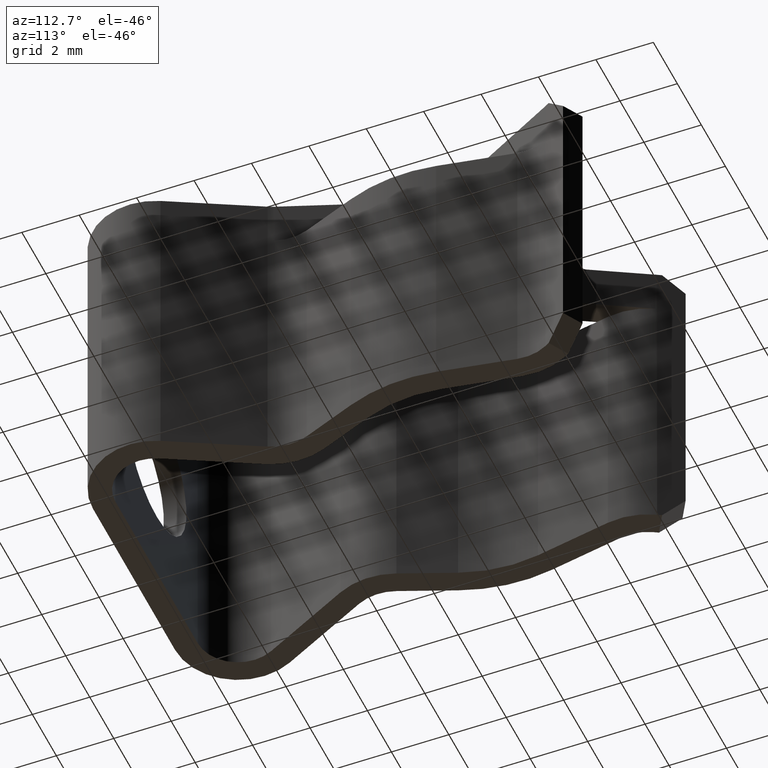
[diagram: clean part render]
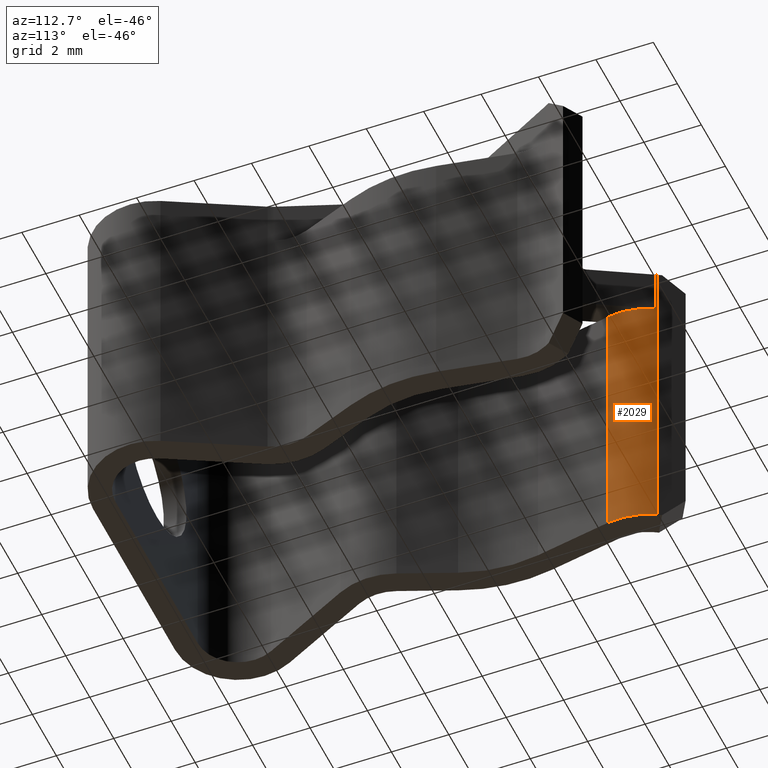
[diagram: same view with one face highlighted and labeled with its STEP entity id]
A machine part, auxiliary view. The second image highlights one B-rep face of the part: STEP entity #2029.
In plain terms, the highlighted cylindrical surface (partial cylindrical patch) has radius 2.3622 mm, axis along (0, 0, 1).
Its self-contained STEP definition (entity closure, byte-faithful):
#17 = VERTEX_POINT ( 'NONE', #1382 ) ;
#161 = VECTOR ( 'NONE', #938, 39.37007874015748100 ) ;
#197 = CARTESIAN_POINT ( 'NONE',  ( -0.2313538290724795600, 0.5769999999999999600, 0.06200000000000000000 ) ) ;
#212 = ORIENTED_EDGE ( 'NONE', *, *, #880, .T. ) ;
#310 = CIRCLE ( 'NONE', #598, 0.09300000000000004100 ) ;
#328 = VERTEX_POINT ( 'NONE', #1121 ) ;
#330 = VERTEX_POINT ( 'NONE', #1352 ) ;
#353 = EDGE_CURVE ( 'NONE', #1538, #17, #1640, .T. ) ;
#393 = EDGE_CURVE ( 'NONE', #328, #2432, #1004, .T. ) ;
#481 = CARTESIAN_POINT ( 'NONE',  ( -0.1398257617755192800, 0.5605193174630693800, -0.3750000000000000600 ) ) ;
#589 = VECTOR ( 'NONE', #698, 39.37007874015748100 ) ;
#598 = AXIS2_PLACEMENT_3D ( 'NONE', #867, #2208, #1061 ) ;
#647 = VERTEX_POINT ( 'NONE', #1015 ) ;
#698 = DIRECTION ( 'NONE',  ( -0.0000000000000000000, -0.0000000000000000000, -1.000000000000000000 ) ) ;
#799 = CYLINDRICAL_SURFACE ( 'NONE', #895, 0.09300000000000004100 ) ;
#838 = EDGE_CURVE ( 'NONE', #330, #2432, #1499, .T. ) ;
#856 = FACE_OUTER_BOUND ( 'NONE', #1704, .T. ) ;
#867 = CARTESIAN_POINT ( 'NONE',  ( -0.2313538290724797300, 0.5770000000000001800, -0.3750000000000000600 ) ) ;
#880 = EDGE_CURVE ( 'NONE', #647, #17, #1436, .T. ) ;
#895 = AXIS2_PLACEMENT_3D ( 'NONE', #2309, #2132, #985 ) ;
#938 = DIRECTION ( 'NONE',  ( 0.0000000000000000000, 0.0000000000000000000, 1.000000000000000000 ) ) ;
#985 = DIRECTION ( 'NONE',  ( 0.8479133254122398500, -0.5301348815050347400, 0.0000000000000000000 ) ) ;
#1004 = LINE ( 'NONE', #2280, #2463 ) ;
#1015 = CARTESIAN_POINT ( 'NONE',  ( -0.1497109841246562500, 0.6215358941621889100, 0.0000000000000000000 ) ) ;
#1061 = DIRECTION ( 'NONE',  ( 0.8479133254122398500, -0.5301348815050347400, 0.0000000000000000000 ) ) ;
#1080 = ORIENTED_EDGE ( 'NONE', *, *, #393, .T. ) ;
#1092 = LINE ( 'NONE', #2395, #589 ) ;
#1121 = CARTESIAN_POINT ( 'NONE',  ( -0.1508134665205269300, 0.6235000000000002800, -0.3750000000000000600 ) ) ;
#1283 = CARTESIAN_POINT ( 'NONE',  ( -0.1508134665205268000, 0.6235000000000000500, 0.06200000000000000000 ) ) ;
#1324 = DIRECTION ( 'NONE',  ( 0.0000000000000000000, 0.0000000000000000000, 1.000000000000000000 ) ) ;
#1352 = CARTESIAN_POINT ( 'NONE',  ( -0.1497109841246562500, 0.6215358941621889100, 0.06200000000000000000 ) ) ;
#1371 = ORIENTED_EDGE ( 'NONE', *, *, #2281, .T. ) ;
#1382 = CARTESIAN_POINT ( 'NONE',  ( -0.1398257617755192500, 0.5605193174630693800, 0.0000000000000000000 ) ) ;
#1415 = CARTESIAN_POINT ( 'NONE',  ( -0.2313538290724797300, 0.5770000000000001800, 0.0000000000000000000 ) ) ;
#1436 = CIRCLE ( 'NONE', #2475, 0.09299999999999999900 ) ;
#1499 = CIRCLE ( 'NONE', #1712, 0.09300000000000006900 ) ;
#1501 = CARTESIAN_POINT ( 'NONE',  ( -0.1398257617755192800, 0.5605193174630693800, -0.3750000000000000600 ) ) ;
#1527 = DIRECTION ( 'NONE',  ( -0.0000000000000000000, -0.0000000000000000000, -1.000000000000000000 ) ) ;
#1538 = VERTEX_POINT ( 'NONE', #481 ) ;
#1640 = LINE ( 'NONE', #1501, #161 ) ;
#1704 = EDGE_LOOP ( 'NONE', ( #1080, #2237, #2274, #212, #2096, #1371 ) ) ;
#1712 = AXIS2_PLACEMENT_3D ( 'NONE', #197, #1735, #2094 ) ;
#1735 = DIRECTION ( 'NONE',  ( 0.0000000000000000000, 0.0000000000000000000, 1.000000000000000000 ) ) ;
#2029 = ADVANCED_FACE ( 'NONE', ( #856 ), #799, .T. ) ;
#2094 = DIRECTION ( 'NONE',  ( -1.000000000000000000, 0.0000000000000000000, 0.0000000000000000000 ) ) ;
#2096 = ORIENTED_EDGE ( 'NONE', *, *, #353, .F. ) ;
#2132 = DIRECTION ( 'NONE',  ( 0.0000000000000000000, 0.0000000000000000000, 1.000000000000000000 ) ) ;
#2208 = DIRECTION ( 'NONE',  ( 0.0000000000000000000, 0.0000000000000000000, 1.000000000000000000 ) ) ;
#2237 = ORIENTED_EDGE ( 'NONE', *, *, #838, .F. ) ;
#2258 = DIRECTION ( 'NONE',  ( 1.000000000000000000, -7.343677402323287600E-015, 0.0000000000000000000 ) ) ;
#2274 = ORIENTED_EDGE ( 'NONE', *, *, #2367, .T. ) ;
#2280 = CARTESIAN_POINT ( 'NONE',  ( -0.1508134665205269300, 0.6235000000000002800, -0.3750000000000000600 ) ) ;
#2281 = EDGE_CURVE ( 'NONE', #1538, #328, #310, .T. ) ;
#2309 = CARTESIAN_POINT ( 'NONE',  ( -0.2313538290724797300, 0.5770000000000001800, -0.5707359033802805700 ) ) ;
#2367 = EDGE_CURVE ( 'NONE', #330, #647, #1092, .T. ) ;
#2395 = CARTESIAN_POINT ( 'NONE',  ( -0.1497109841246562500, 0.6215358941621889100, 0.06200000000000000000 ) ) ;
#2432 = VERTEX_POINT ( 'NONE', #1283 ) ;
#2463 = VECTOR ( 'NONE', #1324, 39.37007874015748100 ) ;
#2475 = AXIS2_PLACEMENT_3D ( 'NONE', #1415, #1527, #2258 ) ;